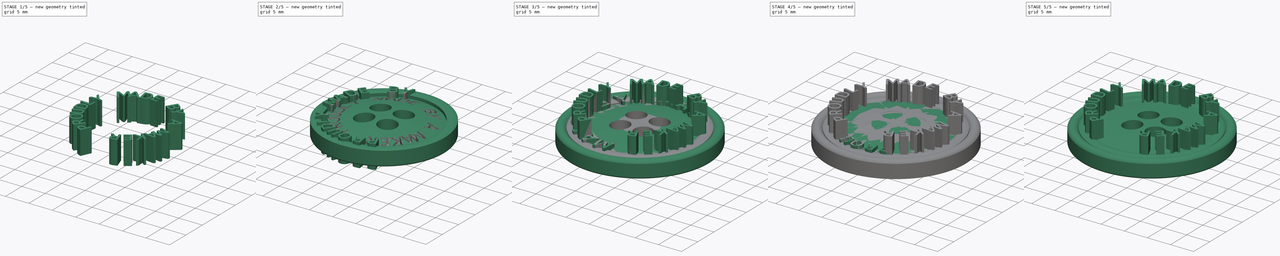
[diagram: build sequence overview — one tinted view per stage of 5, left to right]
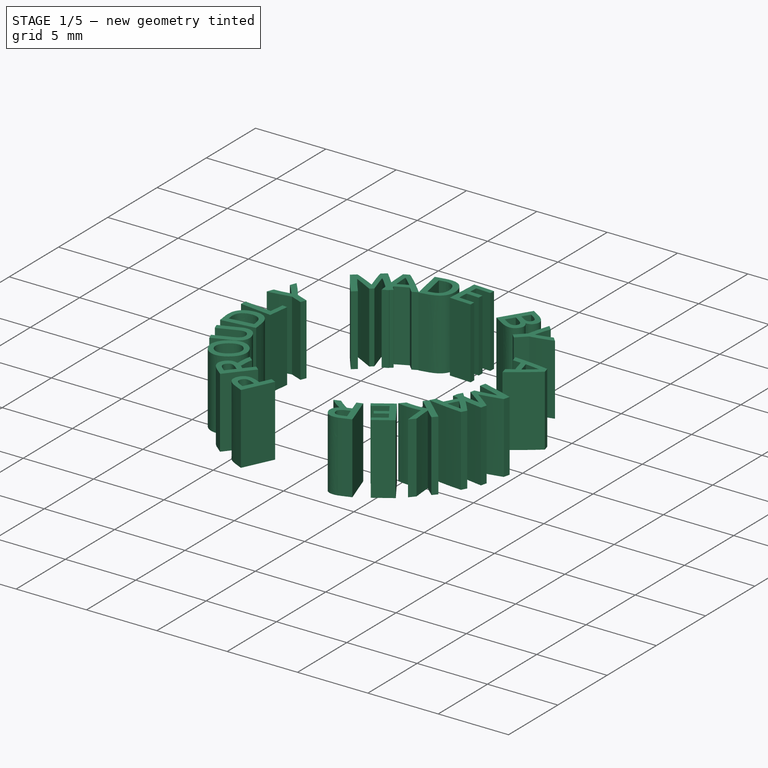
[diagram: stage 1 of 5 — iso view after this stage's code; geometry added in this stage tinted green]
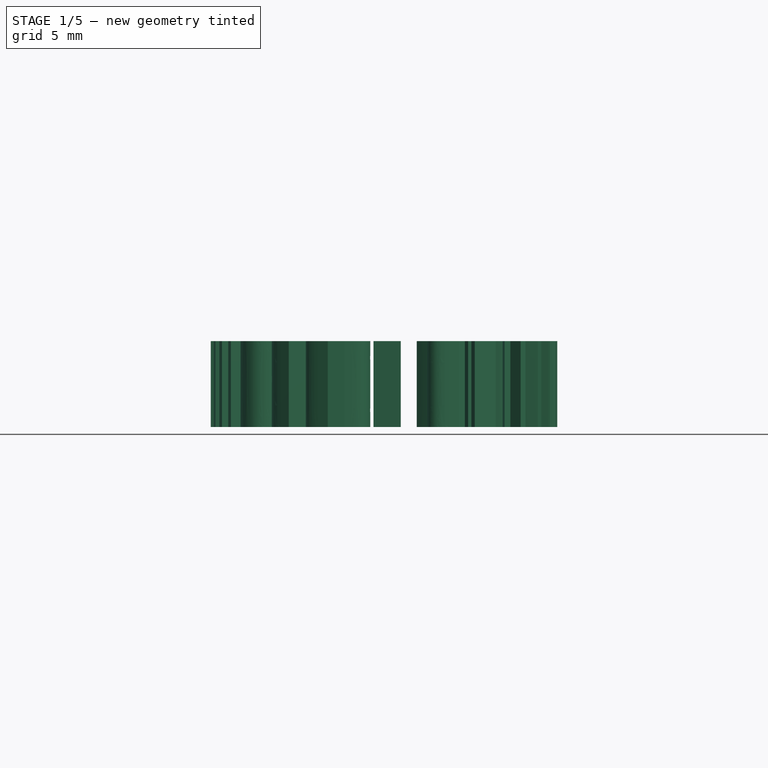
[diagram: stage 1 of 5 — front view after this stage's code; geometry added in this stage tinted green]
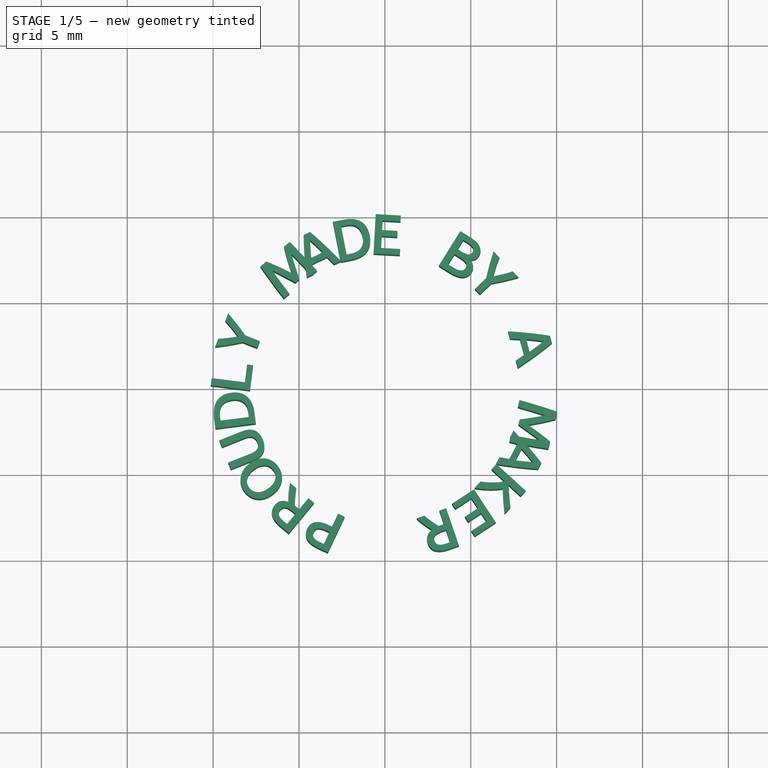
[diagram: stage 1 of 5 — top view after this stage's code; geometry added in this stage tinted green]
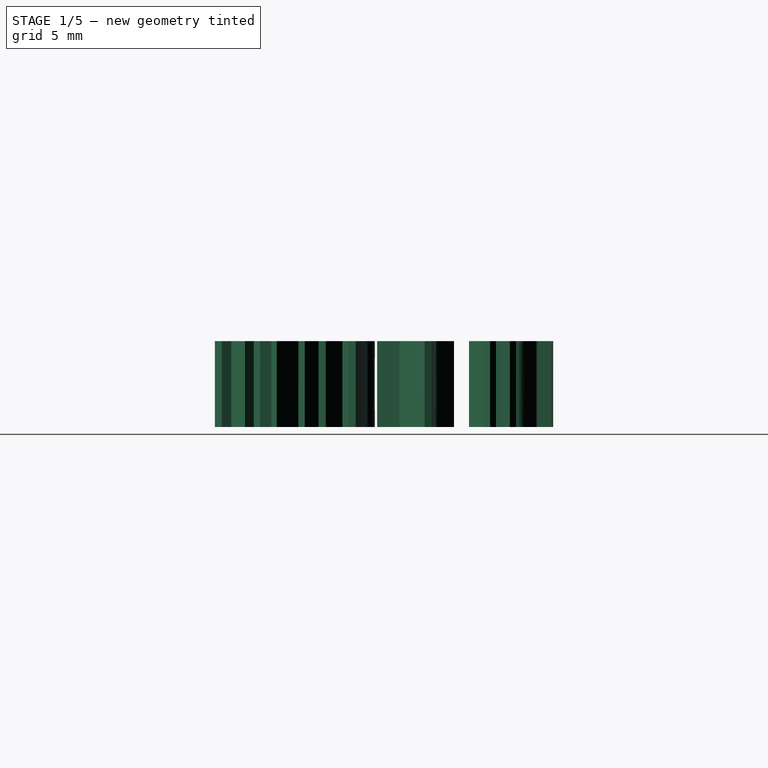
[diagram: stage 1 of 5 — right view after this stage's code; geometry added in this stage tinted green]
FCSTD DOCUMENT  (FreeCAD 0.16R6707 (Git))
Label: Button_Proudly_made_by_a_Maker
License: All rights reserved
LicenseURL: http://en.wikipedia.org/wiki/All_rights_reserved
objects: Part::Extrusion×83, Part::Part2DObjectPython×15, Sketcher::SketchObject×8, Part::Cut×8, PartDesign::Pad×5, Part::FeaturePython×5, PartDesign::Fillet×5, Part::MultiFuse×4, App::DocumentObjectGroup×4, PartDesign::Revolution×2
note: 142 computed .brp shape members not serialized (recipe doc carries the construction recipe); baked Part::Feature solids carry a one-line shape summary decoded from their .brp

FEATURE [Part::Extrusion] Extrusion106
  Dir = (0,0,5)
  Placement = pos=(7.9,0,0) rot=(0,0,-1;1.74533rad)
  Solid = false
FEATURE [Part::Extrusion] Extrusion107
  Dir = (0,0,5)
  Placement = pos=(7.65359,1.95768,0) rot=(0,0,-1;1.49491rad)
  Solid = false
FEATURE [Part::Extrusion] Extrusion108
  Dir = (0,0,5)
  Placement = pos=(6.92975,3.79323,0) rot=(0,0,-1;1.2445rad)
  Solid = false
FEATURE [Part::Extrusion] Extrusion109
  Dir = (0,0,5)
  Placement = pos=(5.77361,5.39216,0) rot=(0,0,-1;0.99408rad)
  Solid = false
FEATURE [Part::Extrusion] Extrusion110
  Dir = (0,0,5)
  Placement = pos=(4.25731,6.65472,0) rot=(0,0,-1;0.743664rad)
  Solid = false
FEATURE [Part::Extrusion] Extrusion111
  Dir = (0,0,5)
  Placement = pos=(2.47543,7.50215,0) rot=(0,0,-1;0.493247rad)
  Solid = false
FEATURE [Part::Extrusion] Extrusion112
  Dir = (0,0,5)
  Placement = pos=(0.539137,7.88158,0) rot=(0,0,-1;0.242831rad)
  Solid = false
FEATURE [Part::Extrusion] Extrusion113
  Dir = (0,0,5)
  Placement = pos=(-1.43079,7.76935,0) rot=(0,0,1;0.007585rad)
  Solid = false
FEATURE [Part::Extrusion] Extrusion114
  Dir = (0,0,5)
  Placement = pos=(-3.31147,7.17246,0) rot=(0,0,1;0.258002rad)
  Solid = false
FEATURE [Part::Extrusion] Extrusion115
  Dir = (0,0,5)
  Placement = pos=(-4.98557,6.12814,0) rot=(0,0,1;0.508418rad)
  Solid = false
FEATURE [Part::Extrusion] Extrusion116
  Dir = (0,0,5)
  Placement = pos=(-6.34866,4.70154,0) rot=(0,0,1;0.758834rad)
  Solid = false
FEATURE [Part::Extrusion] Extrusion117
  Dir = (0,0,5)
  Placement = pos=(-7.31572,2.98165,0) rot=(0,0,1;1.00925rad)
  Solid = false
FEATURE [Part::Extrusion] Extrusion118
  Dir = (0,0,5)
  Placement = pos=(-7.82641,1.07576,0) rot=(0,0,1;1.25967rad)
  Solid = false
FEATURE [Part::Extrusion] Extrusion119
  Dir = (0,0,5)
  Placement = pos=(-7.84888,-0.897237,0) rot=(0,0,1;1.51008rad)
  Solid = false
FEATURE [Part::Extrusion] Extrusion120
  Dir = (0,0,5)
  Placement = pos=(-7.38173,-2.81426,0) rot=(0,0,1;1.7605rad)
  Solid = false
FEATURE [Part::Extrusion] Extrusion121
  Dir = (0,0,5)
  Placement = pos=(-6.45409,-4.55573,0) rot=(0,0,1;2.01092rad)
  Solid = false
FEATURE [Part::Extrusion] Extrusion122
  Dir = (0,0,5)
  Placement = pos=(-5.12384,-6.01301,0) rot=(0,0,1;2.26133rad)
  Solid = false
FEATURE [Part::Extrusion] Extrusion123
  Dir = (0,0,5)
  Placement = pos=(-3.47396,-7.09518,0) rot=(0,0,1;2.51175rad)
  Solid = false
FEATURE [Part::Extrusion] Extrusion124
  Dir = (0,0,5)
  Placement = pos=(-1.60737,-7.73475,0) rot=(0,0,1;2.76216rad)
  Solid = false
FEATURE [Part::Extrusion] Extrusion125
  Dir = (0,0,5)
  Placement = pos=(0.359497,-7.89182,0) rot=(0,0,1;3.01258rad)
  Solid = false
FEATURE [Part::Extrusion] Extrusion126
  Dir = (0,0,5)
  Placement = pos=(2.30393,-7.55658,0) rot=(0,0,1;3.263rad)
  Solid = false
FEATURE [Part::Extrusion] Extrusion127
  Dir = (0,0,5)
  Placement = pos=(4.10465,-6.74995,0) rot=(0,0,1;3.51341rad)
  Solid = false
FEATURE [Part::Extrusion] Extrusion128
  Dir = (0,0,5)
  Placement = pos=(5.64931,-5.52225,0) rot=(0,0,1;3.76383rad)
  Solid = false
FEATURE [Part::MultiFuse] Fusion  label="proudly_make_by_a_maker_16"
  Placement = pos=(0,0,3) rot=(0,0,-1;1.06465rad)
  Shapes = -> [Extrusion106,Extrusion107,Extrusion108,Extrusion109,Extrusion110,Extrusion111,Extrusion112,Extrusion113,Extrusion114,Extrusion115,Extrusion116,Extrusion117,Extrusion118,Extrusion119,Extrusion120,Extrusion121,Extrusion122,Extrusion123,Extrusion124,Extrusion125,Extrusion126,Extrusion127,Extrusion128]
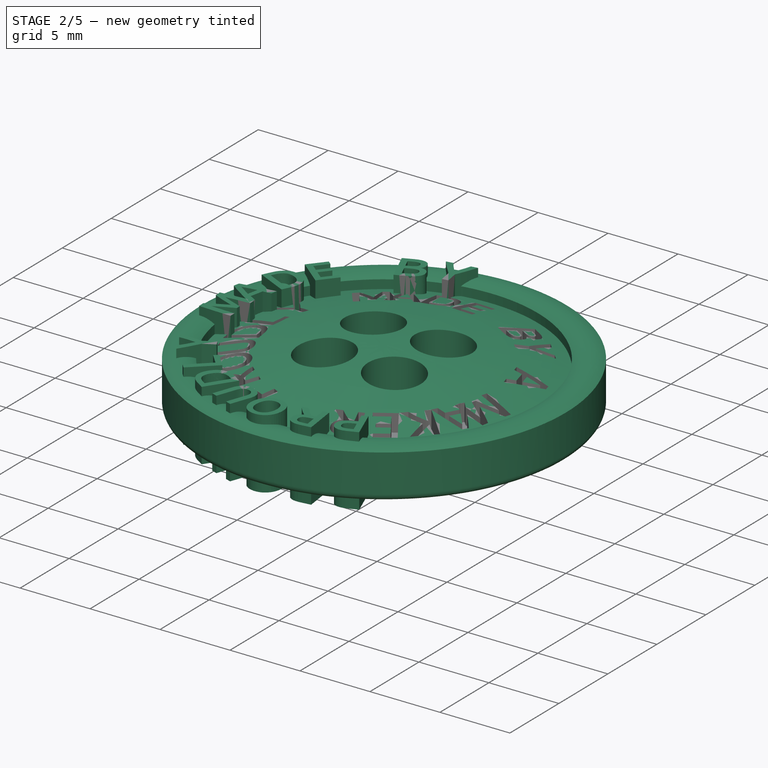
[diagram: stage 2 of 5 — iso view after this stage's code; geometry added in this stage tinted green]
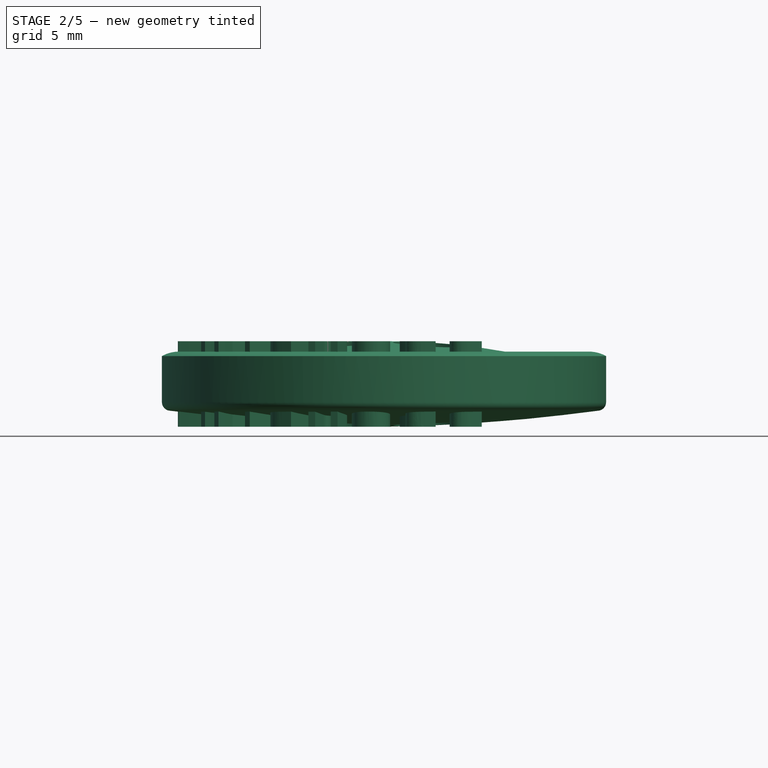
[diagram: stage 2 of 5 — front view after this stage's code; geometry added in this stage tinted green]
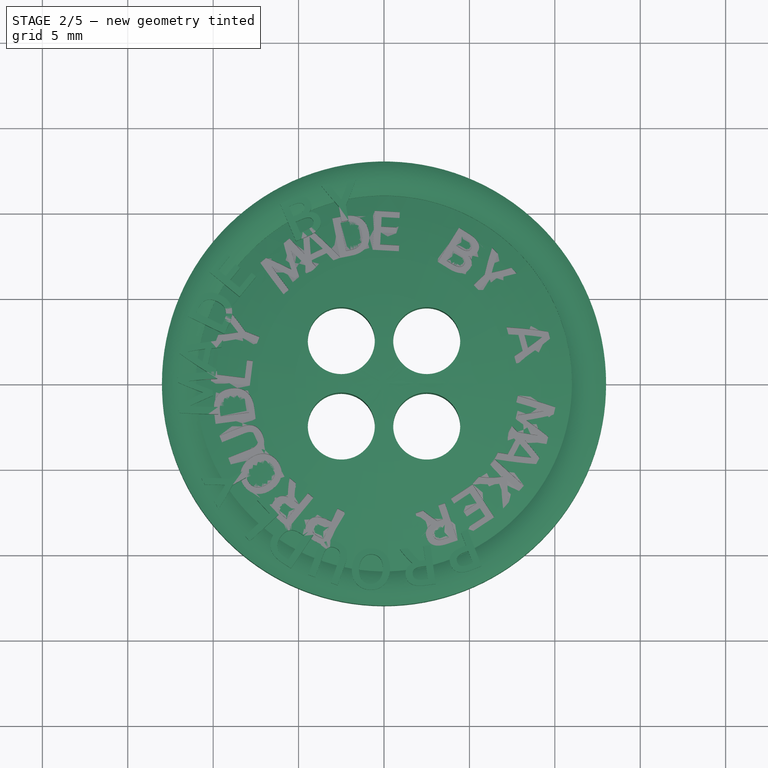
[diagram: stage 2 of 5 — top view after this stage's code; geometry added in this stage tinted green]
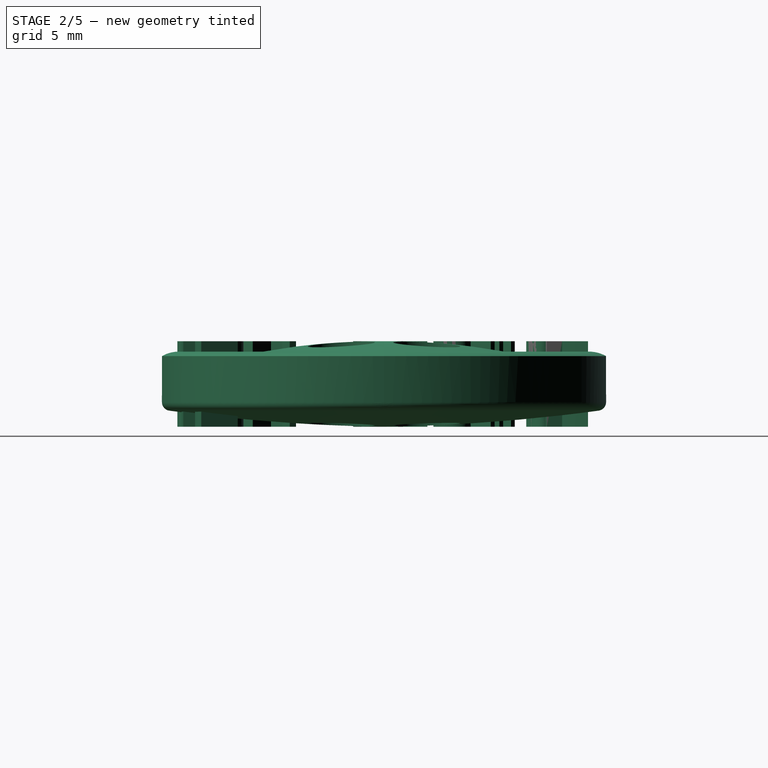
[diagram: stage 2 of 5 — right view after this stage's code; geometry added in this stage tinted green]
FEATURE [App::DocumentObjectGroup] FcString001  label="30_button_made_by_makers001"
  Group = -> [Grupo001,Cut007]
FEATURE [Sketcher::SketchObject] Sketch010  label="button001"
  Placement = pos=(0,0,0) rot=(1,0,0;1.5708rad)
  sketch-geometry (6):
    g0: LineSegment StartX=0 StartY=0 StartZ=0 EndX=0 EndY=5 EndZ=0
    g1: LineSegment StartX=13 StartY=1 StartZ=0 EndX=13 EndY=4.13438 EndZ=0
    g2: ArcOfCircle CenterX=-1.57499 CenterY=105.475 CenterZ=0 NormalX=0 NormalY=0 NormalZ=1 Radius=105.487 StartAngle=4.72732 EndAngle=4.851
    g3: ArcOfCircle CenterX=12 CenterY=2.35653 CenterZ=0 NormalX=0 NormalY=0 NormalZ=1 Radius=2.03979 StartAngle=1.05843 EndAngle=2.08317
    g4: LineSegment StartX=11 StartY=3.5 StartZ=0 EndX=11 EndY=4.13438 EndZ=0
    g5: ArcOfCircle CenterX=0.250001 CenterY=-34.25 CenterZ=0 NormalX=0 NormalY=0 NormalZ=1 Radius=39.2508 StartAngle=1.29337 EndAngle=1.57717
  constraints (13):
    c: Coincident(g0,g-1)
    c: DistanceX(g-1,g1) = 13
    c: Vertical(g1)
    c: DistanceY(g-1,g0) = 5
    c: Coincident(g2,g-1)
    c: Coincident(g2,g1)
    c: DistanceX(g0,g4) = 11
    c: Coincident(g3,g1)
    c: Coincident(g4,g3)
    c: Vertical(g4)
    c: DistanceY(g1,g3) = 0
    c: Coincident(g5,g4)
    c: Coincident(g5,g0)
FEATURE [Sketcher::SketchObject] Sketch011  label="button_hole010"
  Placement = pos=(0,0,5) rot=(0,0,1;0rad)
  sketch-geometry (1):
    g0: Circle CenterX=2.5 CenterY=2.5 CenterZ=0 NormalX=0 NormalY=0 NormalZ=1 Radius=1.96139
  constraints (2):
    c: DistanceX(g-1,g0) = 2.5
    c: DistanceY(g-1,g0) = 2.5
FEATURE [PartDesign::Pad] Pad005  label="button_hole011"
  Length = 17
  Length2 = 100
  Midplane = true
  Placement = pos=(0,0,5) rot=(0,0,1;0rad)
  Reversed = true
  Sketch = -> Sketch011
  Type = 0
FEATURE [Part::FeaturePython] Array005  label="button_holes005"  # Draft array (typed FeaturePython)
  Angle = 360
  ArrayType = 1
  Axis = (0,0,1)
  Base = -> Pad005
  Center = (0,0,0)
  Fuse = false
  IntervalAxis = (0,0,0)
  IntervalX = (1,0,0)
  IntervalY = (0,1,0)
  IntervalZ = (0,0,0)
  NumberPolar = 4
  NumberX = 2
  NumberY = 2
  NumberZ = 1
FEATURE [Part::Extrusion] Extrusion044
  Dir = (0,0,5)
  Placement = pos=(-1.01247,9.84809,0) rot=(0,0,-1;0.072084rad)
  Solid = false
FEATURE [Part::Extrusion] Extrusion045
  Dir = (0,0,5)
  Placement = pos=(-3.31537,9.32836,0) rot=(0,0,1;0.166951rad)
  Solid = false
FEATURE [Part::Extrusion] Extrusion046
  Dir = (0,0,5)
  Placement = pos=(-5.42974,8.27816,0) rot=(0,0,1;0.405986rad)
  Solid = false
FEATURE [Part::Extrusion] Extrusion047
  Dir = (0,0,5)
  Placement = pos=(-7.23533,6.75722,0) rot=(0,0,1;0.645021rad)
  Solid = false
FEATURE [Part::Extrusion] Extrusion048
  Dir = (0,0,5)
  Placement = pos=(-8.62948,4.85201,0) rot=(0,0,1;0.884056rad)
  Solid = false
FEATURE [Part::Extrusion] Extrusion049
  Dir = (0,0,5)
  Placement = pos=(-9.53291,2.67089,0) rot=(0,0,1;1.12309rad)
  Solid = false
FEATURE [Part::Extrusion] Extrusion050
  Dir = (0,0,5)
  Placement = pos=(-9.89423,0.33789,0) rot=(0,0,1;1.36213rad)
  Solid = false
FEATURE [Part::Extrusion] Extrusion051
  Dir = (0,0,5)
  Placement = pos=(-9.69291,-2.01433,0) rot=(0,0,1;1.60116rad)
  Solid = false
FEATURE [Part::Extrusion] Extrusion052
  Dir = (0,0,5)
  Placement = pos=(-8.94039,-4.252,0) rot=(0,0,1;1.8402rad)
  Solid = false
FEATURE [Part::Extrusion] Extrusion053
  Dir = (0,0,5)
  Placement = pos=(-7.67946,-6.24787,0) rot=(0,0,1;2.07923rad)
  Solid = false
FEATURE [Part::Extrusion] Extrusion054
  Dir = (0,0,5)
  Placement = pos=(-5.98183,-7.88846,0) rot=(0,0,1;2.31827rad)
  Solid = false
FEATURE [Part::Extrusion] Extrusion055
  Dir = (0,0,5)
  Placement = pos=(-3.94403,-9.08045,0) rot=(0,0,1;2.5573rad)
  Solid = false
FEATURE [Part::Extrusion] Extrusion056
  Dir = (0,0,5)
  Placement = pos=(-1.68196,-9.75608,0) rot=(0,0,1;2.79634rad)
  Solid = false
FEATURE [Part::Extrusion] Extrusion057
  Dir = (0,0,5)
  Placement = pos=(0.675765,-9.87691,0) rot=(0,0,1;3.03537rad)
  Solid = false
FEATURE [Part::Extrusion] Extrusion058
  Dir = (0,0,5)
  Placement = pos=(2.99506,-9.43608,0) rot=(0,0,1;3.27441rad)
  Solid = false
FEATURE [Part::Extrusion] Extrusion059
  Dir = (0,0,5)
  Placement = pos=(5.14404,-8.45866,0) rot=(0,0,1;3.51344rad)
  Solid = false
FEATURE [PartDesign::Revolution] Revolution001  label="button_extrusion001"
  Angle = 360
  Axis = (0,0,1)
  Base = (0,0,0)
  Placement = pos=(0,0,0) rot=(1,0,0;1.5708rad)
  ReferenceAxis = -> Sketch010 [V_Axis]
  Reversed = true
  Sketch = -> Sketch010
FEATURE [PartDesign::Fillet] Fillet005  label="rounded_buttton005"
  Base = -> Revolution001 [Edge2]
  Placement = pos=(0,0,0) rot=(1,0,0;1.5708rad)
  Radius = 0.5
FEATURE [Part::Cut] Cut008  label="generic_button001"
  Base = -> Fillet005
  Tool = -> Array005
FEATURE [Part::Cut] Cut009  label="26_button_proudly_made_by_a_maker"
  Base = -> Cut008
  Tool = -> Fusion
FEATURE [App::DocumentObjectGroup] Grupo002  label="26_button_proudly_made_by_a_maker001"
  Group = -> [Revolution001,Fusion003,Cut009]
note: 15 file-system paths scrubbed to <path> (originals preserved in the JSON sidecar)
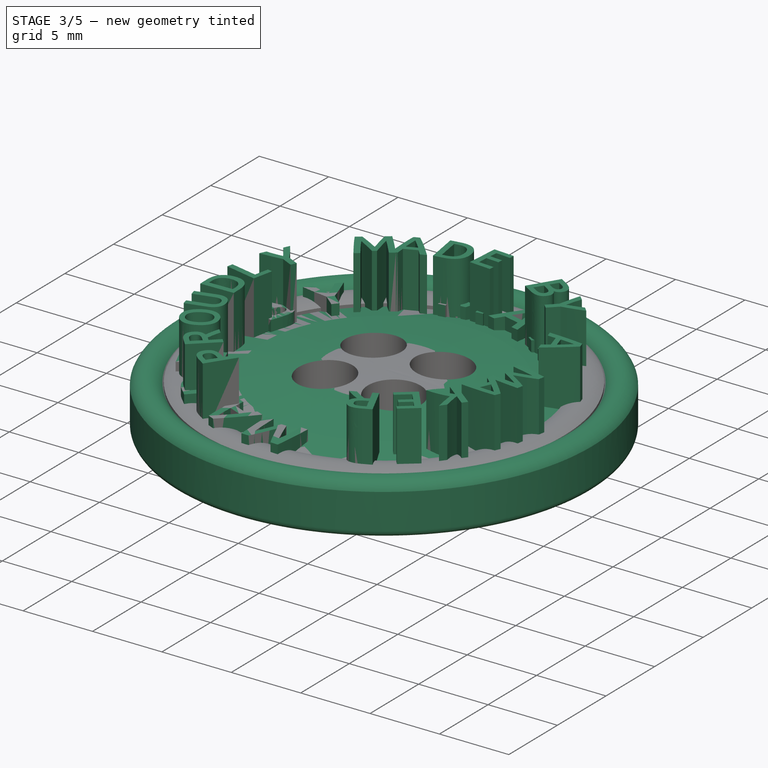
[diagram: stage 3 of 5 — iso view after this stage's code; geometry added in this stage tinted green]
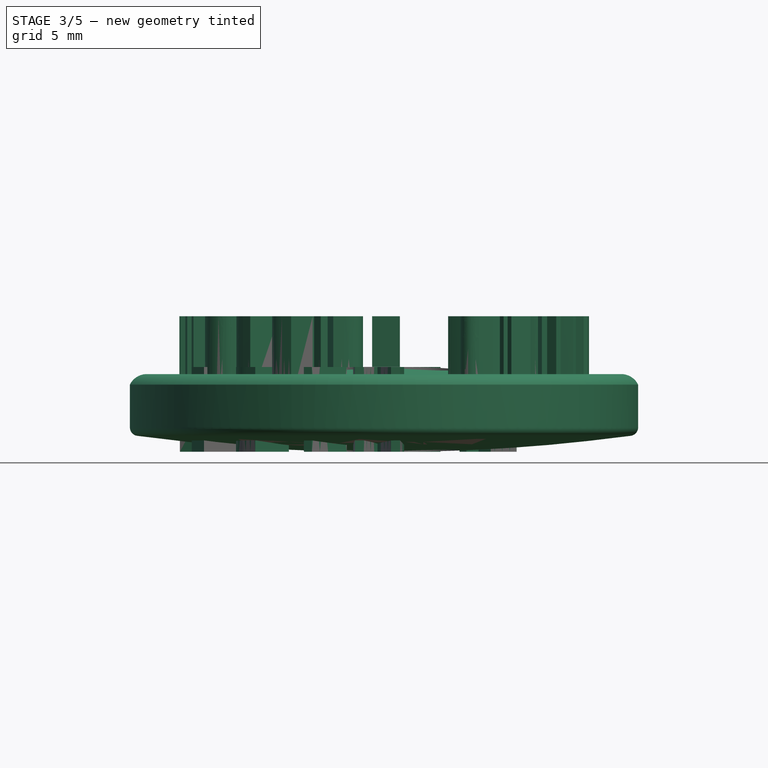
[diagram: stage 3 of 5 — front view after this stage's code; geometry added in this stage tinted green]
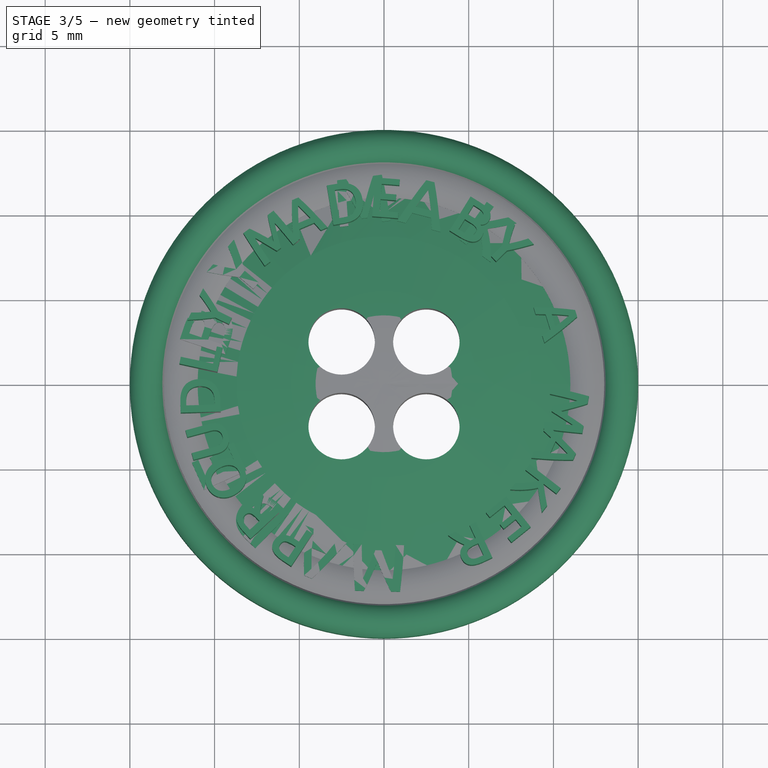
[diagram: stage 3 of 5 — top view after this stage's code; geometry added in this stage tinted green]
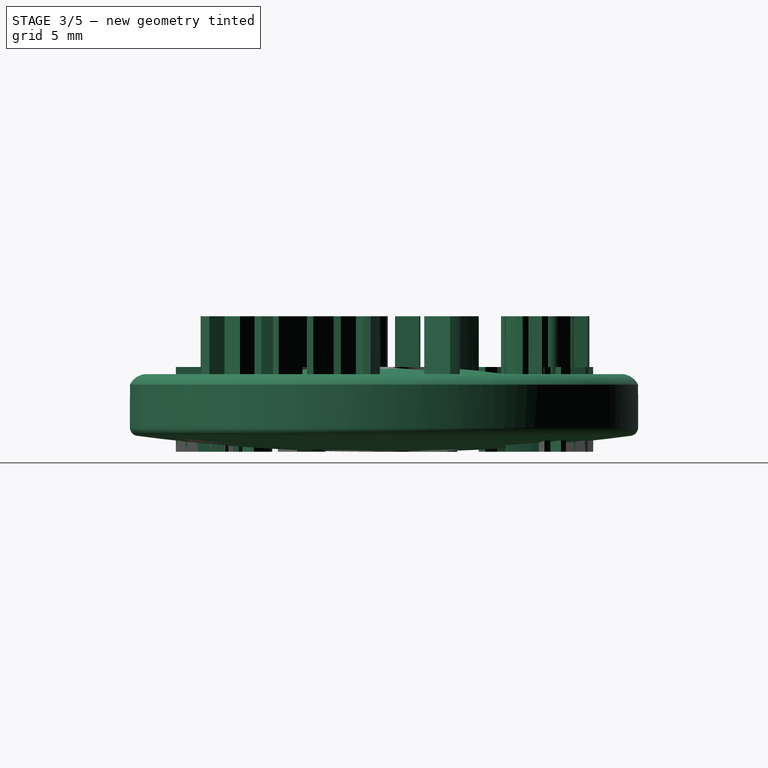
[diagram: stage 3 of 5 — right view after this stage's code; geometry added in this stage tinted green]
FEATURE [Part::Part2DObjectPython] ShapeString027  # Draft 2D object (typed FeaturePython)
  FontFile = <path>
  Size = 1.5
  String = K
  Tracking = 0
FEATURE [Part::Extrusion] Extrusion026
  Base = -> ShapeString027
  Dir = (0,0,5)
  Placement = pos=(4.18697,8.69436,0) rot=(0,0,-1;0.62333rad)
  Solid = false
FEATURE [Part::Part2DObjectPython] ShapeString028  # Draft 2D object (typed FeaturePython)
  FontFile = <path>
  Size = 1.5
  String = A
  Tracking = 0
FEATURE [Part::Extrusion] Extrusion027
  Base = -> ShapeString028
  Dir = (0,0,5)
  Placement = pos=(0.721126,9.62302,0) rot=(0,0,-1;0.249331rad)
  Solid = false
FEATURE [Part::Part2DObjectPython] ShapeString029  # Draft 2D object (typed FeaturePython)
  FontFile = <path>
  Size = 1.5
  String = M
  Tracking = 0
FEATURE [Part::Extrusion] Extrusion028
  Base = -> ShapeString029
  Dir = (0,0,5)
  Placement = pos=(-2.84441,9.22127,0) rot=(0,0,1;0.124669rad)
  Solid = false
FEATURE [Part::Part2DObjectPython] ShapeString030  # Draft 2D object (typed FeaturePython)
  FontFile = <path>
  Size = 1.5
  Tracking = 0
FEATURE [Part::Extrusion] Extrusion029
  Base = -> ShapeString030
  Dir = (0,0,5)
  Placement = pos=(-6.0167,7.54466,0) rot=(0,0,1;0.498668rad)
  Solid = false
FEATURE [Part::Part2DObjectPython] ShapeString031  # Draft 2D object (typed FeaturePython)
  FontFile = <path>
  Size = 1.5
  String = Y
  Tracking = 0
FEATURE [Part::Extrusion] Extrusion030
  Base = -> ShapeString031
  Dir = (0,0,5)
  Placement = pos=(-8.35716,4.82497,0) rot=(0,0,1;0.872668rad)
  Solid = false
FEATURE [Part::Part2DObjectPython] ShapeString032  # Draft 2D object (typed FeaturePython)
  FontFile = <path>
  Size = 1.5
  String = B
  Tracking = 0
FEATURE [Part::Extrusion] Extrusion031
  Base = -> ShapeString032
  Dir = (0,0,5)
  Placement = pos=(-9.54222,1.43822,0) rot=(0,0,1;1.24667rad)
  Solid = false
FEATURE [Part::Part2DObjectPython] ShapeString033  # Draft 2D object (typed FeaturePython)
  FontFile = <path>
  Size = 1.5
  Tracking = 0
FEATURE [Part::Extrusion] Extrusion032
  Base = -> ShapeString033
  Dir = (0,0,5)
  Placement = pos=(-9.40804,-2.14737,0) rot=(0,0,1;1.62067rad)
  Solid = false
FEATURE [Part::Part2DObjectPython] ShapeString034  # Draft 2D object (typed FeaturePython)
  FontFile = <path>
  Size = 1.5
  String = E
  Tracking = 0
FEATURE [Part::Extrusion] Extrusion033
  Base = -> ShapeString034
  Dir = (0,0,5)
  Placement = pos=(-7.97318,-5.43608,0) rot=(0,0,1;1.99467rad)
  Solid = false
FEATURE [Part::Part2DObjectPython] ShapeString035  # Draft 2D object (typed FeaturePython)
  FontFile = <path>
  Size = 1.5
  String = D
  Tracking = 0
FEATURE [Part::Extrusion] Extrusion034
  Base = -> ShapeString035
  Dir = (0,0,5)
  Placement = pos=(-5.43599,-7.97323,0) rot=(0,0,1;2.36867rad)
  Solid = false
FEATURE [Part::Part2DObjectPython] ShapeString036  # Draft 2D object (typed FeaturePython)
  FontFile = <path>
  Size = 1.5
  String = A
  Tracking = 0
FEATURE [Part::Extrusion] Extrusion035
  Base = -> ShapeString036
  Dir = (0,0,5)
  Placement = pos=(-2.14727,-9.40807,0) rot=(0,0,1;2.74267rad)
  Solid = false
FEATURE [Part::Part2DObjectPython] ShapeString037  # Draft 2D object (typed FeaturePython)
  FontFile = <path>
  Size = 1.5
  String = M
  Tracking = 0
FEATURE [Part::Extrusion] Extrusion036
  Base = -> ShapeString037
  Dir = (0,0,5)
  Placement = pos=(1.43832,-9.54221,0) rot=(0,0,1;3.11667rad)
  Solid = false
FEATURE [App::DocumentObjectGroup] Grupo  label="source"
  Group = -> [Revolution,Cut004,Cut005,Sketch005]
FEATURE [PartDesign::Fillet] Fillet004  label="rounded_buttton004"
  Placement = pos=(0,0,0) rot=(1,0,0;1.5708rad)
  Radius = 0.5
FEATURE [Sketcher::SketchObject] Sketch009  label="button_hole008"
  Placement = pos=(0,0,5) rot=(0,0,1;0rad)
  sketch-geometry (1):
    g0: Circle CenterX=2.5 CenterY=2.5 CenterZ=0 NormalX=0 NormalY=0 NormalZ=1 Radius=1.96139
  constraints (2):
    c: DistanceX(g-1,g0) = 2.5
    c: DistanceY(g-1,g0) = 2.5
FEATURE [PartDesign::Pad] Pad004  label="button_hole009"
  Length = 17
  Length2 = 100
  Midplane = true
  Placement = pos=(0,0,5) rot=(0,0,1;0rad)
  Reversed = true
  Sketch = -> Sketch009
  Type = 0
FEATURE [Part::FeaturePython] Array004  label="button_holes004"  # Draft array (typed FeaturePython)
  Angle = 360
  ArrayType = 1
  Axis = (0,0,1)
  Base = -> Pad004
  Center = (0,0,0)
  Fuse = false
  IntervalAxis = (0,0,0)
  IntervalX = (1,0,0)
  IntervalY = (0,1,0)
  IntervalZ = (0,0,0)
  NumberPolar = 4
  NumberX = 2
  NumberY = 2
  NumberZ = 1
FEATURE [Part::Cut] Cut006  label="generic_button_v003"
  Base = -> Fillet004
  Tool = -> Array004
FEATURE [Part::Extrusion] Extrusion037
  Dir = (0,0,5)
  Placement = pos=(9.9,0,0) rot=(0,0,-1;1.74533rad)
  Solid = false
FEATURE [Part::Extrusion] Extrusion038
  Dir = (0,0,5)
  Placement = pos=(9.61851,2.34398,0) rot=(0,0,-1;1.50629rad)
  Solid = false
FEATURE [Part::Extrusion] Extrusion039
  Dir = (0,0,5)
  Placement = pos=(8.79006,4.55466,0) rot=(0,0,-1;1.26726rad)
  Solid = false
FEATURE [Part::Extrusion] Extrusion040
  Dir = (0,0,5)
  Placement = pos=(7.46174,6.50634,0) rot=(0,0,-1;1.02822rad)
  Solid = false
FEATURE [Part::Extrusion] Extrusion041
  Dir = (0,0,5)
  Placement = pos=(5.70911,8.08802,0) rot=(0,0,-1;0.789189rad)
  Solid = false
FEATURE [Part::Extrusion] Extrusion042
  Dir = (0,0,5)
  Placement = pos=(3.63182,9.20977,0) rot=(0,0,-1;0.550154rad)
  Solid = false
FEATURE [Part::Extrusion] Extrusion043
  Dir = (0,0,5)
  Placement = pos=(1.348,9.8078,0) rot=(0,0,-1;0.311119rad)
  Solid = false
FEATURE [Part::MultiFuse] Fusion003  label="text001"
  Placement = pos=(0,0,3) rot=(0,0,-1;0.959931rad)
  Shapes = -> [Extrusion059,Extrusion058,Extrusion057,Extrusion056,Extrusion055,Extrusion054,Extrusion053,Extrusion052,Extrusion051,Extrusion050,Extrusion049,Extrusion048,Extrusion047,Extrusion046,Extrusion045,Extrusion044,Extrusion043,Extrusion042,Extrusion041,Extrusion040,Extrusion039,Extrusion038,Extrusion037]
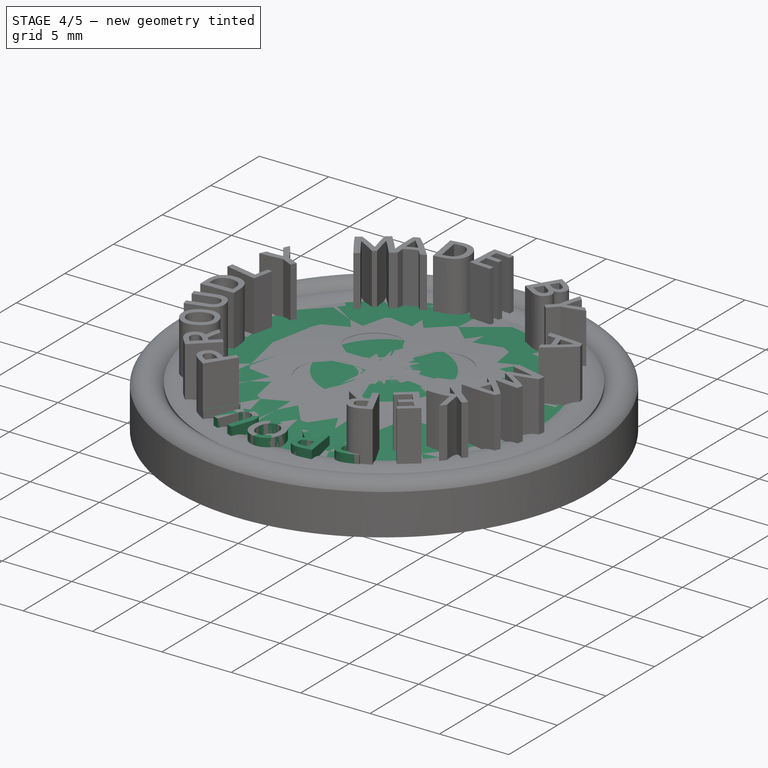
[diagram: stage 4 of 5 — iso view after this stage's code; geometry added in this stage tinted green]
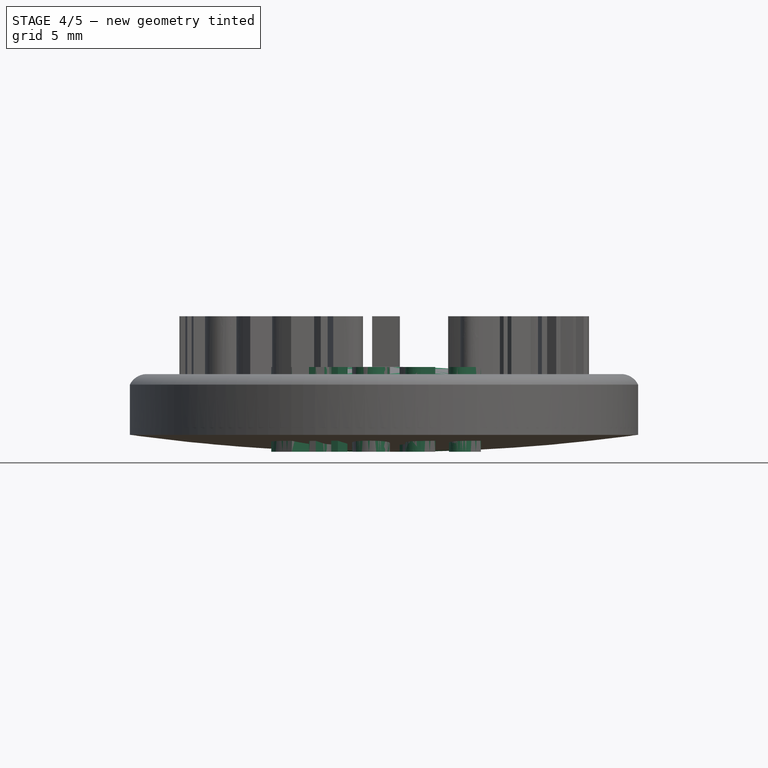
[diagram: stage 4 of 5 — front view after this stage's code; geometry added in this stage tinted green]
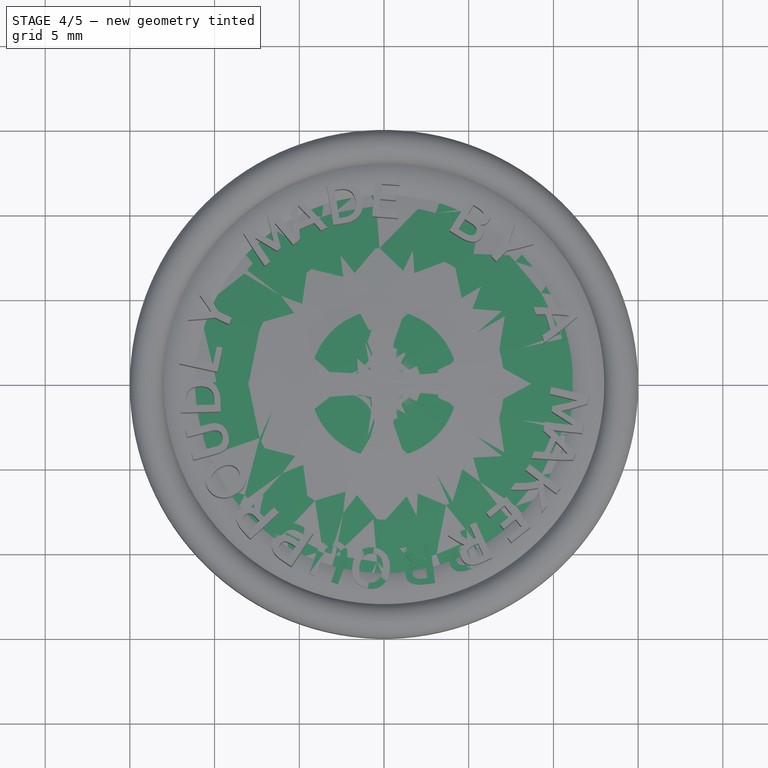
[diagram: stage 4 of 5 — top view after this stage's code; geometry added in this stage tinted green]
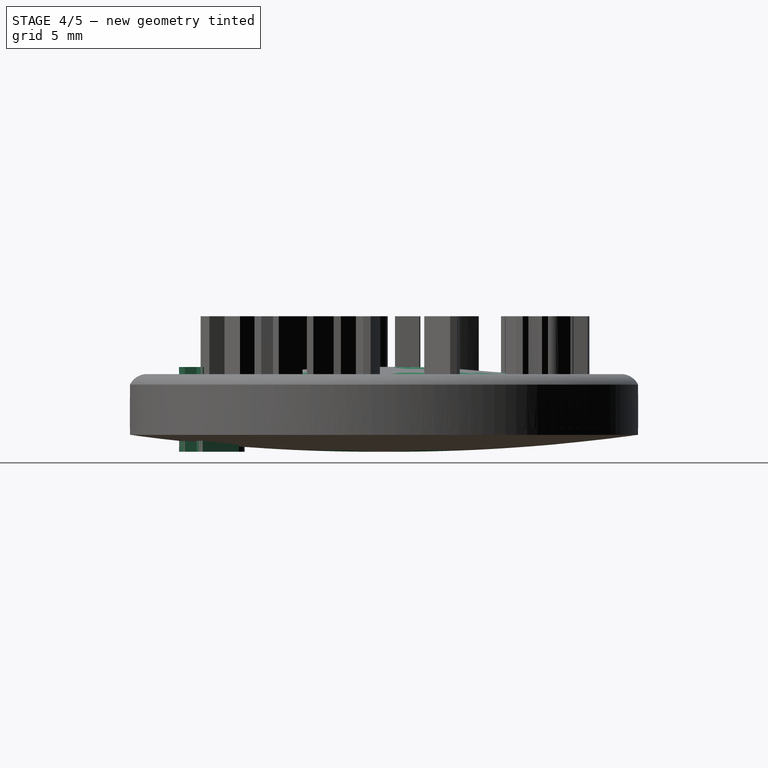
[diagram: stage 4 of 5 — right view after this stage's code; geometry added in this stage tinted green]
FEATURE [Part::Extrusion] Extrusion018
  Dir = (0,0,5)
  Placement = pos=(-3.94403,-9.08045,0) rot=(0,0,1;2.5573rad)
  Solid = false
FEATURE [Part::Extrusion] Extrusion019
  Dir = (0,0,5)
  Placement = pos=(-1.68196,-9.75608,0) rot=(0,0,1;2.79634rad)
  Solid = false
FEATURE [Part::Extrusion] Extrusion020
  Dir = (0,0,5)
  Placement = pos=(0.675765,-9.87691,0) rot=(0,0,1;3.03537rad)
  Solid = false
FEATURE [Part::Extrusion] Extrusion021
  Dir = (0,0,5)
  Placement = pos=(2.99506,-9.43608,0) rot=(0,0,1;3.27441rad)
  Solid = false
FEATURE [Part::Extrusion] Extrusion022
  Dir = (0,0,5)
  Placement = pos=(5.14404,-8.45866,0) rot=(0,0,1;3.51344rad)
  Solid = false
FEATURE [Part::Part2DObjectPython] ShapeString024  # Draft 2D object (typed FeaturePython)
  FontFile = <path>
  Size = 1.5
  String = S
  Tracking = 0
FEATURE [Part::Extrusion] Extrusion023
  Base = -> ShapeString024
  Dir = (0,0,5)
  Placement = pos=(9.65,0,0) rot=(0,0,-1;1.74533rad)
  Solid = false
FEATURE [Part::Part2DObjectPython] ShapeString025  # Draft 2D object (typed FeaturePython)
  FontFile = <path>
  Size = 1.5
  String = R
  Tracking = 0
FEATURE [Part::Extrusion] Extrusion024
  Base = -> ShapeString025
  Dir = (0,0,5)
  Placement = pos=(8.98293,3.52555,0) rot=(0,0,-1;1.37133rad)
  Solid = false
FEATURE [Part::Part2DObjectPython] ShapeString026  # Draft 2D object (typed FeaturePython)
  FontFile = <path>
  Size = 1.5
  String = E
  Tracking = 0
FEATURE [Part::Extrusion] Extrusion025
  Base = -> ShapeString026
  Dir = (0,0,5)
  Placement = pos=(7.07394,6.56367,0) rot=(0,0,-1;0.99733rad)
  Solid = false
FEATURE [Part::MultiFuse] Fusion002  label="made_by_makers001"
  Placement = pos=(0,0,3) rot=(0,0,-1;0.698132rad)
  Shapes = -> [Extrusion023,Extrusion024,Extrusion025,Extrusion026,Extrusion027,Extrusion028,Extrusion029,Extrusion030,Extrusion031,Extrusion032,Extrusion033,Extrusion034,Extrusion035,Extrusion036]
FEATURE [App::DocumentObjectGroup] Grupo001  label="shapes"
  Group = -> [ShapeString024,ShapeString025,ShapeString026,ShapeString027,ShapeString028,ShapeString029,ShapeString030,ShapeString031,ShapeString032,ShapeString033,ShapeString034,ShapeString035,ShapeString036,ShapeString037]
FEATURE [Sketcher::SketchObject] Sketch005  label="button_backup_v1"
  Placement = pos=(0,0,0) rot=(1,0,0;1.5708rad)
  sketch-geometry (5):
    g0: LineSegment StartX=0 StartY=0 StartZ=0 EndX=0 EndY=5 EndZ=0
    g1: LineSegment StartX=15 StartY=1 StartZ=0 EndX=15 EndY=3.95903 EndZ=0
    g2: ArcOfCircle CenterX=0.5 CenterY=105.5 CenterZ=0 NormalX=0 NormalY=0 NormalZ=1 Radius=105.501 StartAngle=4.70765 EndAngle=4.85026
    g3: ArcOfCircle CenterX=-0.647807 CenterY=-84.7852 CenterZ=0 NormalX=0 NormalY=0 NormalZ=1 Radius=89.7876 StartAngle=1.4182 EndAngle=1.56358
    g4: ArcOfCircle CenterX=14 CenterY=3.4741 CenterZ=0 NormalX=0 NormalY=0 NormalZ=1 Radius=1.11138 StartAngle=0.451522 EndAngle=2.69007
  constraints (12):
    c: Coincident(g0,g-1)
    c: PointOnObject(g0,g-2)
    c: DistanceX(g-1,g1) = 15
    c: Vertical(g1)
    c: DistanceY(g-1,g0) = 5
    c: Coincident(g2,g-1)
    c: Coincident(g2,g1)
    c: Coincident(g3,g0)
    c: DistanceX(g0,g3) = 13
    c: DistanceY(g1,g3) = 0
    c: Coincident(g4,g3)
    c: Coincident(g4,g1)
FEATURE [PartDesign::Revolution] Revolution  label="button_extrusion"
  Angle = 360
  Axis = (0,0,1)
  Base = (0,0,0)
  Placement = pos=(0,0,0) rot=(1,0,0;1.5708rad)
  ReferenceAxis = -> Sketch002 [V_Axis]
  Reversed = true
  Sketch = -> Sketch002
FEATURE [PartDesign::Fillet] Fillet002  label="rounded_buttton002"
  Placement = pos=(0,0,0) rot=(1,0,0;1.5708rad)
  Radius = 0.5
FEATURE [Sketcher::SketchObject] Sketch006  label="button_hole004"
  Placement = pos=(0,0,5) rot=(0,0,1;0rad)
  sketch-geometry (1):
    g0: Circle CenterX=2.5 CenterY=2.5 CenterZ=0 NormalX=0 NormalY=0 NormalZ=1 Radius=1.96139
  constraints (2):
    c: DistanceX(g-1,g0) = 2.5
    c: DistanceY(g-1,g0) = 2.5
FEATURE [PartDesign::Pad] Pad002  label="button_hole005"
  Length = 17
  Length2 = 100
  Midplane = true
  Placement = pos=(0,0,5) rot=(0,0,1;0rad)
  Reversed = true
  Sketch = -> Sketch006
  Type = 0
FEATURE [Part::FeaturePython] Array002  label="button_holes002"  # Draft array (typed FeaturePython)
  Angle = 360
  ArrayType = 1
  Axis = (0,0,1)
  Base = -> Pad002
  Center = (0,0,0)
  Fuse = false
  IntervalAxis = (0,0,0)
  IntervalX = (1,0,0)
  IntervalY = (0,1,0)
  IntervalZ = (0,0,0)
  NumberPolar = 4
  NumberX = 2
  NumberY = 2
  NumberZ = 1
FEATURE [Part::Cut] Cut004  label="generic_button_v001"
  Base = -> Fillet002
  Tool = -> Array002
FEATURE [PartDesign::Fillet] Fillet003  label="rounded_buttton003"
  Placement = pos=(0,0,0) rot=(1,0,0;1.5708rad)
  Radius = 0.5
FEATURE [Sketcher::SketchObject] Sketch008  label="button_hole006"
  Placement = pos=(0,0,5) rot=(0,0,1;0rad)
  sketch-geometry (1):
    g0: Circle CenterX=2.5 CenterY=2.5 CenterZ=0 NormalX=0 NormalY=0 NormalZ=1 Radius=1.96139
  constraints (2):
    c: DistanceX(g-1,g0) = 2.5
    c: DistanceY(g-1,g0) = 2.5
FEATURE [PartDesign::Pad] Pad003  label="button_hole007"
  Length = 17
  Length2 = 100
  Midplane = true
  Placement = pos=(0,0,5) rot=(0,0,1;0rad)
  Reversed = true
  Sketch = -> Sketch008
  Type = 0
FEATURE [Part::FeaturePython] Array003  label="button_holes003"  # Draft array (typed FeaturePython)
  Angle = 360
  ArrayType = 1
  Axis = (0,0,1)
  Base = -> Pad003
  Center = (0,0,0)
  Fuse = false
  IntervalAxis = (0,0,0)
  IntervalX = (1,0,0)
  IntervalY = (0,1,0)
  IntervalZ = (0,0,0)
  NumberPolar = 4
  NumberX = 2
  NumberY = 2
  NumberZ = 1
FEATURE [Part::Cut] Cut005  label="generic_button_v002"
  Base = -> Fillet003
  Tool = -> Array003
FEATURE [Part::Cut] Cut007  label="button_made_by_makers"
  Base = -> Cut006
  Tool = -> Fusion002
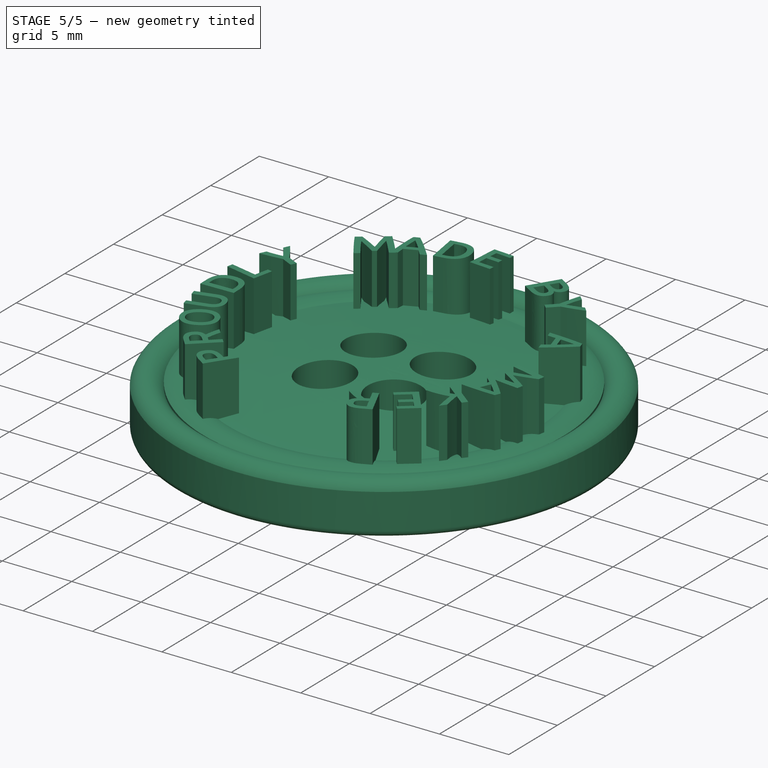
[diagram: stage 5 of 5 — iso view after this stage's code; geometry added in this stage tinted green]
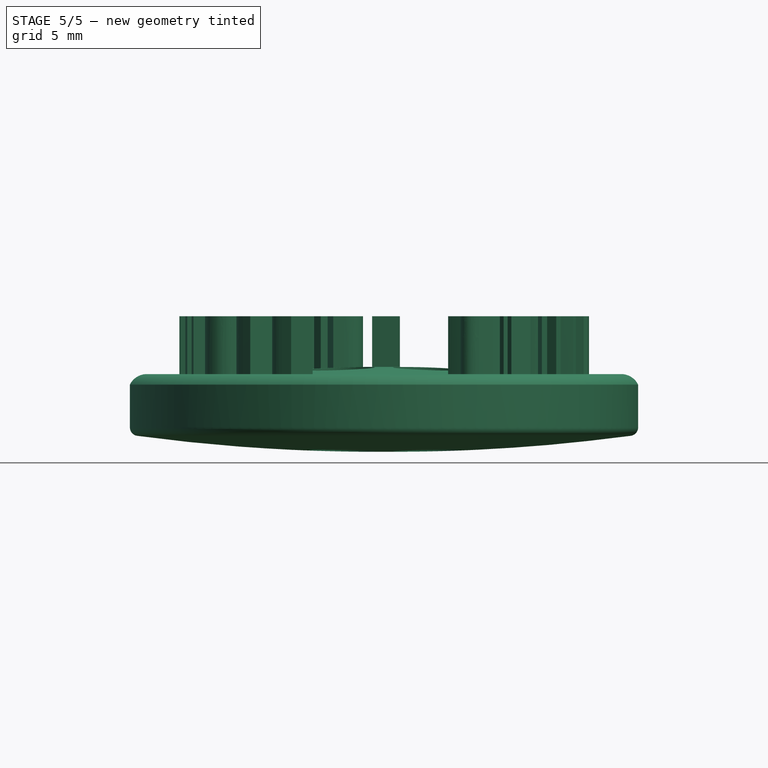
[diagram: stage 5 of 5 — front view after this stage's code; geometry added in this stage tinted green]
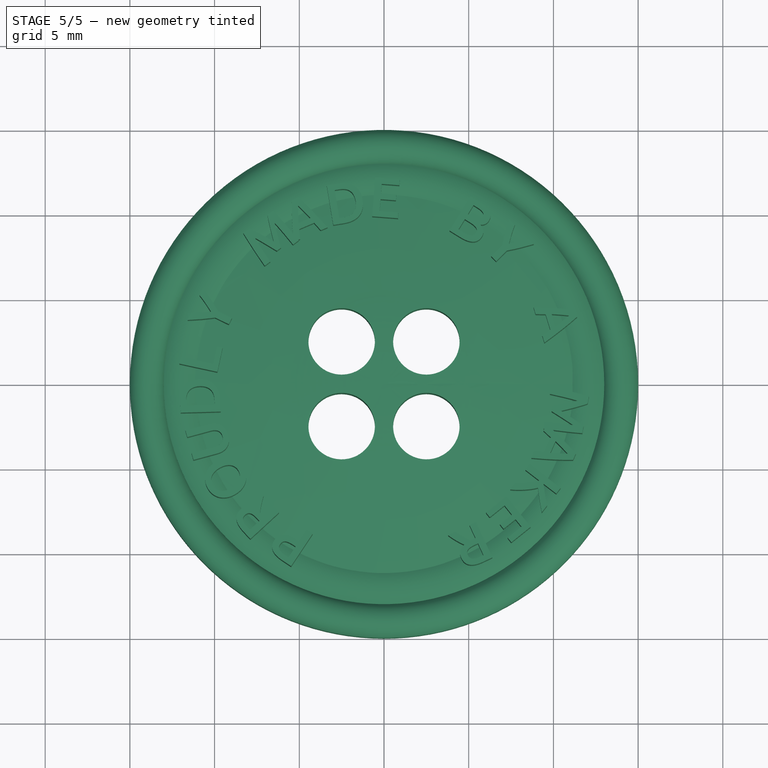
[diagram: stage 5 of 5 — top view after this stage's code; geometry added in this stage tinted green]
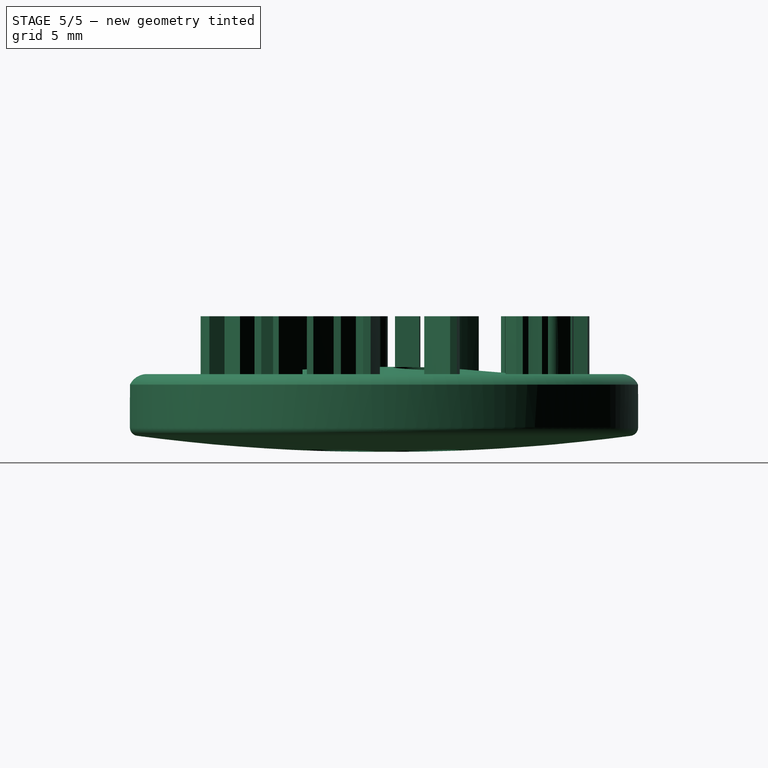
[diagram: stage 5 of 5 — right view after this stage's code; geometry added in this stage tinted green]
FEATURE [Sketcher::SketchObject] Sketch002  label="button"
  Placement = pos=(0,0,0) rot=(1,0,0;1.5708rad)
  sketch-geometry (6):
    g0: LineSegment StartX=0 StartY=0 StartZ=0 EndX=0 EndY=5 EndZ=0
    g1: LineSegment StartX=15 StartY=1 StartZ=0 EndX=15 EndY=3.95904 EndZ=0
    g2: ArcOfCircle CenterX=0.5 CenterY=105.5 CenterZ=0 NormalX=0 NormalY=0 NormalZ=1 Radius=105.501 StartAngle=4.70765 EndAngle=4.85026
    g3: ArcOfCircle CenterX=14 CenterY=3.4741 CenterZ=0 NormalX=0 NormalY=0 NormalZ=1 Radius=1.11138 StartAngle=0.451522 EndAngle=2.69007
    g4: LineSegment StartX=13 StartY=3.5 StartZ=0 EndX=13 EndY=3.95904 EndZ=0
    g5: ArcOfCircle CenterX=0.881679 CenterY=-44.4421 CenterZ=0 NormalX=0 NormalY=0 NormalZ=1 Radius=49.45 StartAngle=1.32321 EndAngle=1.58863
  constraints (13):
    c: Coincident(g0,g-1)
    c: DistanceX(g-1,g1) = 15
    c: Vertical(g1)
    c: DistanceY(g-1,g0) = 5
    c: Coincident(g2,g-1)
    c: Coincident(g2,g1)
    c: DistanceX(g0,g4) = 13
    c: Coincident(g3,g1)
    c: Coincident(g4,g3)
    c: Vertical(g4)
    c: DistanceY(g1,g3) = 0
    c: Coincident(g5,g4)
    c: Coincident(g5,g0)
FEATURE [Sketcher::SketchObject] Sketch  label="button_hole"
  Placement = pos=(0,0,5) rot=(0,0,1;0rad)
  sketch-geometry (1):
    g0: Circle CenterX=2.5 CenterY=2.5 CenterZ=0 NormalX=0 NormalY=0 NormalZ=1 Radius=1.96139
  constraints (2):
    c: DistanceX(g-1,g0) = 2.5
    c: DistanceY(g-1,g0) = 2.5
FEATURE [PartDesign::Pad] Pad  label="button_hole001"
  Length = 17
  Length2 = 100
  Midplane = true
  Placement = pos=(0,0,5) rot=(0,0,1;0rad)
  Reversed = true
  Sketch = -> Sketch
  Type = 0
FEATURE [Part::FeaturePython] Array  label="button_holes"  # Draft array (typed FeaturePython)
  Angle = 360
  ArrayType = 1
  Axis = (0,0,1)
  Base = -> Pad
  Center = (0,0,0)
  Fuse = false
  IntervalAxis = (0,0,0)
  IntervalX = (1,0,0)
  IntervalY = (0,1,0)
  IntervalZ = (0,0,0)
  NumberPolar = 4
  NumberX = 2
  NumberY = 2
  NumberZ = 1
FEATURE [Part::Part2DObjectPython] ShapeString  # Draft 2D object (typed FeaturePython)
  FontFile = <path>
  Placement = pos=(-24,-20,0) rot=(0,0,1;0rad)
  Size = 3
  String = PROUDLY MADE BY A MAKER
  Tracking = 0
FEATURE [Part::Extrusion] Extrusion
  Dir = (0,0,5)
  Placement = pos=(9.9,0,0) rot=(0,0,-1;1.74533rad)
  Solid = false
FEATURE [Part::Extrusion] Extrusion001
  Dir = (0,0,5)
  Placement = pos=(9.61851,2.34398,0) rot=(0,0,-1;1.50629rad)
  Solid = false
FEATURE [Part::Extrusion] Extrusion002
  Dir = (0,0,5)
  Placement = pos=(8.79006,4.55466,0) rot=(0,0,-1;1.26726rad)
  Solid = false
FEATURE [Part::Extrusion] Extrusion003
  Dir = (0,0,5)
  Placement = pos=(7.46174,6.50634,0) rot=(0,0,-1;1.02822rad)
  Solid = false
FEATURE [Part::Extrusion] Extrusion004
  Dir = (0,0,5)
  Placement = pos=(5.70911,8.08802,0) rot=(0,0,-1;0.789189rad)
  Solid = false
FEATURE [Part::Extrusion] Extrusion005
  Dir = (0,0,5)
  Placement = pos=(3.63182,9.20977,0) rot=(0,0,-1;0.550154rad)
  Solid = false
FEATURE [Part::Extrusion] Extrusion006
  Dir = (0,0,5)
  Placement = pos=(1.348,9.8078,0) rot=(0,0,-1;0.311119rad)
  Solid = false
FEATURE [Part::Extrusion] Extrusion007
  Dir = (0,0,5)
  Placement = pos=(-1.01247,9.84809,0) rot=(0,0,-1;0.072084rad)
  Solid = false
FEATURE [Part::Extrusion] Extrusion008
  Dir = (0,0,5)
  Placement = pos=(-3.31537,9.32836,0) rot=(0,0,1;0.166951rad)
  Solid = false
FEATURE [Part::Extrusion] Extrusion009
  Dir = (0,0,5)
  Placement = pos=(-5.42974,8.27816,0) rot=(0,0,1;0.405986rad)
  Solid = false
FEATURE [Part::Extrusion] Extrusion010
  Dir = (0,0,5)
  Placement = pos=(-7.23533,6.75722,0) rot=(0,0,1;0.645021rad)
  Solid = false
FEATURE [Part::Extrusion] Extrusion011
  Dir = (0,0,5)
  Placement = pos=(-8.62948,4.85201,0) rot=(0,0,1;0.884056rad)
  Solid = false
FEATURE [Part::Extrusion] Extrusion012
  Dir = (0,0,5)
  Placement = pos=(-9.53291,2.67089,0) rot=(0,0,1;1.12309rad)
  Solid = false
FEATURE [Part::Extrusion] Extrusion013
  Dir = (0,0,5)
  Placement = pos=(-9.89423,0.33789,0) rot=(0,0,1;1.36213rad)
  Solid = false
FEATURE [Part::Extrusion] Extrusion014
  Dir = (0,0,5)
  Placement = pos=(-9.69291,-2.01433,0) rot=(0,0,1;1.60116rad)
  Solid = false
FEATURE [Part::Extrusion] Extrusion015
  Dir = (0,0,5)
  Placement = pos=(-8.94039,-4.252,0) rot=(0,0,1;1.8402rad)
  Solid = false
FEATURE [Part::Extrusion] Extrusion016
  Dir = (0,0,5)
  Placement = pos=(-7.67946,-6.24787,0) rot=(0,0,1;2.07923rad)
  Solid = false
FEATURE [Part::Extrusion] Extrusion017
  Dir = (0,0,5)
  Placement = pos=(-5.98183,-7.88846,0) rot=(0,0,1;2.31827rad)
  Solid = false
FEATURE [Part::MultiFuse] Fusion001  label="text"
  Placement = pos=(0,0,3) rot=(0,0,-1;0.959931rad)
  Shapes = -> [Extrusion022,Extrusion021,Extrusion020,Extrusion019,Extrusion018,Extrusion017,Extrusion016,Extrusion015,Extrusion014,Extrusion013,Extrusion012,Extrusion011,Extrusion010,Extrusion009,Extrusion008,Extrusion007,Extrusion006,Extrusion005,Extrusion004,Extrusion003,Extrusion002,Extrusion001,Extrusion]
FEATURE [PartDesign::Fillet] Fillet  label="rounded_buttton"
  Base = -> Revolution [Edge2]
  Placement = pos=(0,0,0) rot=(1,0,0;1.5708rad)
  Radius = 0.5
FEATURE [Part::Cut] Cut  label="generic_button"
  Base = -> Fillet
  Tool = -> Array
FEATURE [Part::Cut] Cut001  label="30_button_proudly_made_by_a_maker"
  Base = -> Cut
  Tool = -> Fusion001
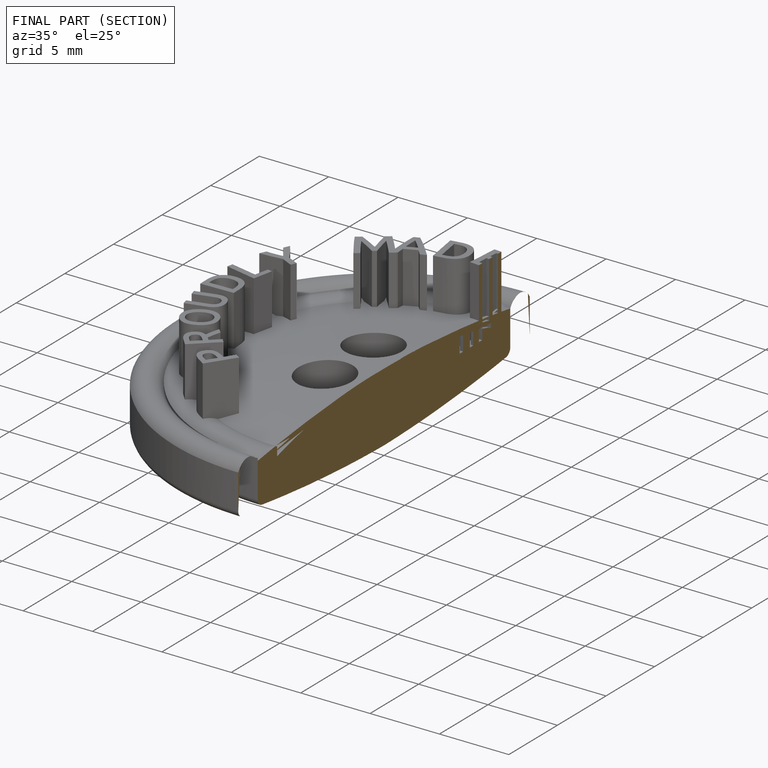
[diagram: finished part — half-section view (interior)]
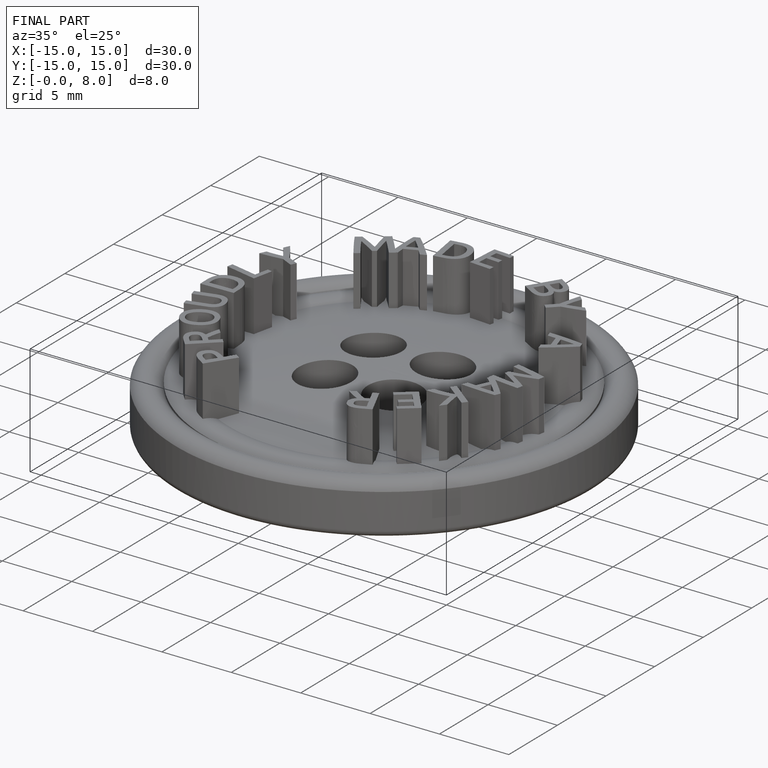
[diagram: finished part — iso view with bounding-box wireframe]
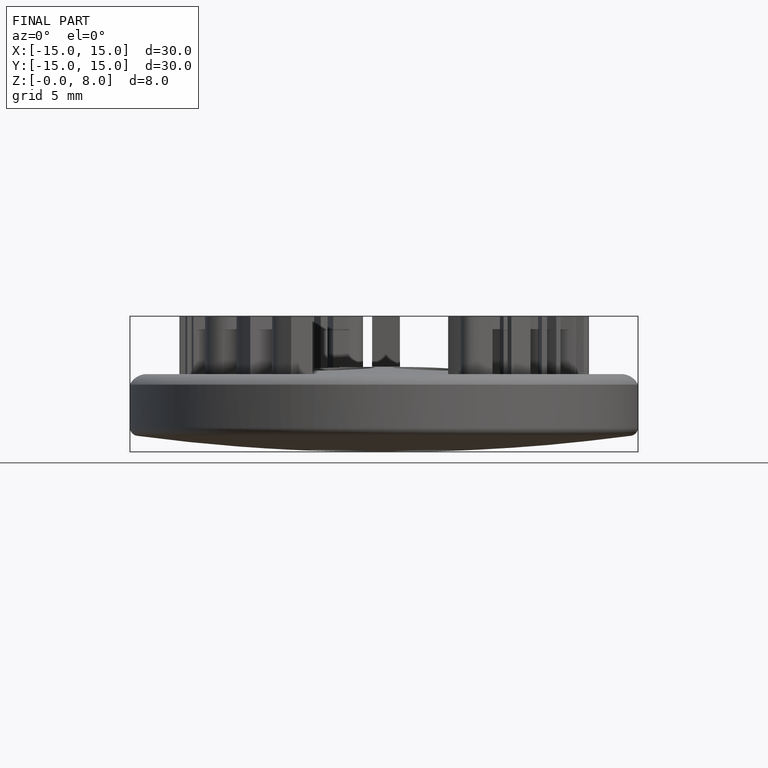
[diagram: finished part — front view with bounding-box wireframe]
